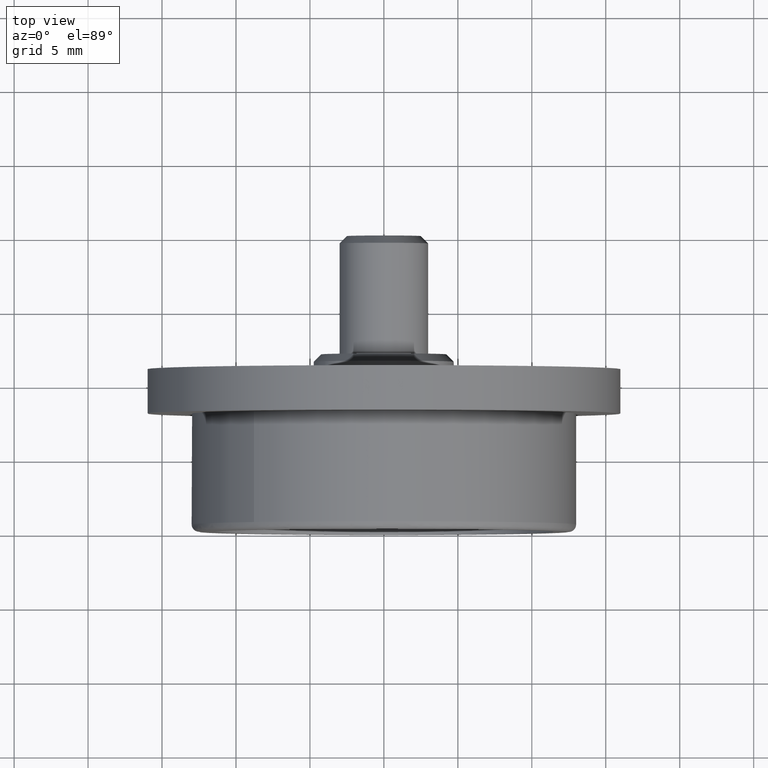
[diagram: clean part render]
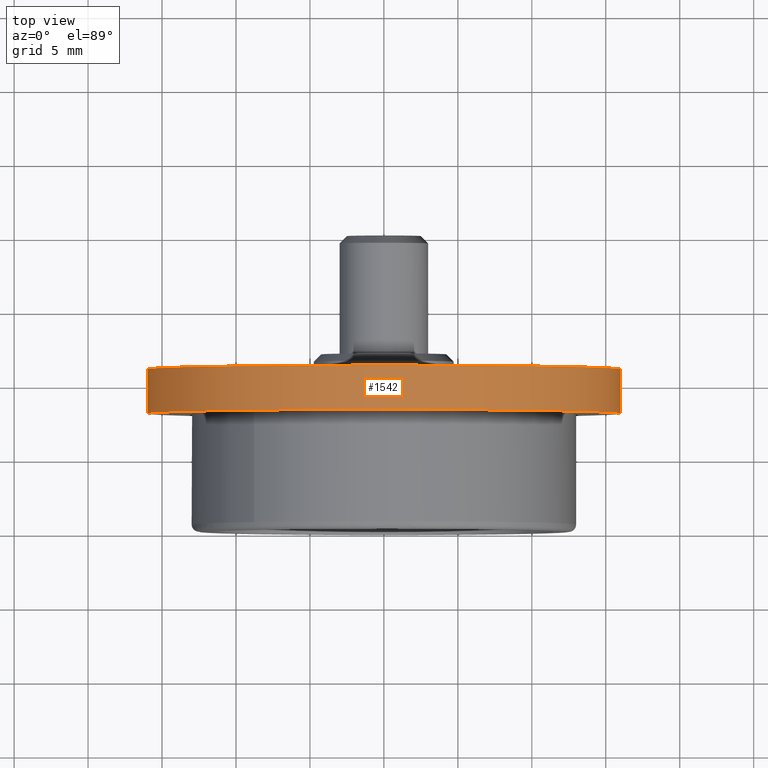
[diagram: same view with one face highlighted and labeled with its STEP entity id]
A machine part, top view. The second image highlights one B-rep face of the part: STEP entity #1542.
In plain terms, the highlighted face is a freeform B-spline surface patch.
Its self-contained STEP definition (entity closure, byte-faithful):
#1440=CARTESIAN_POINT('',(15.888152421818658,11.075000000000001,-1.888547754508135));
#1441=CARTESIAN_POINT('',(15.942201847177685,11.074999999999999,-1.433835658207643));
#1442=CARTESIAN_POINT('',(15.970156774749871,11.074999999999999,-0.976776632557712));
#1443=CARTESIAN_POINT('',(16.946933407307572,11.075000000000001,14.993380142192160));
#1444=CARTESIAN_POINT('',(0.976776632557712,11.074999999999999,15.970156774749871));
#1445=CARTESIAN_POINT('',(-14.993380142192160,11.075000000000001,16.946933407307572));
#1446=CARTESIAN_POINT('',(-15.970156774749871,11.074999999999999,0.976776632557712));
#1447=CARTESIAN_POINT('',(15.888152421818658,7.923125000000001,-1.888547754508135));
#1448=CARTESIAN_POINT('',(15.942201847177685,7.923125000000000,-1.433835658207643));
#1449=CARTESIAN_POINT('',(15.970156774749871,7.923125000000000,-0.976776632557712));
#1450=CARTESIAN_POINT('',(16.946933407307572,7.923124999999999,14.993380142192160));
#1451=CARTESIAN_POINT('',(0.976776632557712,7.923125000000000,15.970156774749871));
#1452=CARTESIAN_POINT('',(-14.993380142192160,7.923124999999999,16.946933407307572));
#1453=CARTESIAN_POINT('',(-15.970156774749871,7.923125000000000,0.976776632557712));
#1461=(BOUNDED_SURFACE()B_SPLINE_SURFACE(2,1,((#1440,#1447),(#1441,#1448),(#1442,#1449),(#1443,#1450),(#1444,#1451),(#1445,#1452),(#1446,#1453)),.UNSPECIFIED.,.F.,.F.,.U.)B_SPLINE_SURFACE_WITH_KNOTS((3,2,2,3),(2,2),(0.0,1.060386719675124,27.570054711553190,54.079722703431273),(0.0,3.151875000000004),.UNSPECIFIED.)GEOMETRIC_REPRESENTATION_ITEM()RATIONAL_B_SPLINE_SURFACE(((0.977505800795127,0.977505800795127),(0.988284271247462,0.988284271247462),(1.0,1.0),(0.707106781186548,0.707106781186548),(1.0,1.0),(0.707106781186548,0.707106781186548),(1.0,1.0)))REPRESENTATION_ITEM('')SURFACE());
#1462=CARTESIAN_POINT('',(15.888153624431769,8.000000000000084,-1.888537636996336));
#1463=VERTEX_POINT('',#1462);
#1464=CARTESIAN_POINT('',(0.0,8.0,16.0));
#1465=VERTEX_POINT('',#1464);
#1466=CARTESIAN_POINT('',(15.888153624431771,8.000000000000084,-1.888537636996335));
#1467=CARTESIAN_POINT('',(15.999999999999998,8.0,-0.947580802194624));
#1468=CARTESIAN_POINT('',(16.0,8.0,-1.598567E-016));
#1469=CARTESIAN_POINT('',(15.999999999999998,8.0,15.999999999999998));
#1470=CARTESIAN_POINT('',(0.0,8.0,16.0));
#1478=(BOUNDED_CURVE()B_SPLINE_CURVE(2,(#1466,#1467,#1468,#1469,#1470),.UNSPECIFIED.,.F.,.U.)B_SPLINE_CURVE_WITH_KNOTS((3,2,3),(0.229562581136241,0.250000000000000,0.500000000000000),.UNSPECIFIED.)CURVE()GEOMETRIC_REPRESENTATION_ITEM()RATIONAL_B_SPLINE_CURVE((0.956026965128767,0.976056074419019,1.0,0.707106781186548,1.0))REPRESENTATION_ITEM(''));
#1479=EDGE_CURVE('',#1463,#1465,#1478,.T.);
#1480=ORIENTED_EDGE('',*,*,#1479,.F.);
#1481=CARTESIAN_POINT('',(15.888153609598129,11.0,-1.888537761791544));
#1482=VERTEX_POINT('',#1481);
#1483=CARTESIAN_POINT('',(15.888153609598129,11.0,-1.888537761791544));
#1484=CARTESIAN_POINT('',(15.888153624431769,8.000000000000084,-1.888537636996336));
#1485=QUASI_UNIFORM_CURVE('',1,(#1483,#1484),.UNSPECIFIED.,.F.,.U.);
#1486=EDGE_CURVE('',#1482,#1463,#1485,.T.);
#1487=ORIENTED_EDGE('',*,*,#1486,.F.);
#1488=CARTESIAN_POINT('',(0.0,11.0,16.0));
#1489=VERTEX_POINT('',#1488);
#1490=CARTESIAN_POINT('',(15.888153609598131,11.000000000000002,-1.888537761791543));
#1491=CARTESIAN_POINT('',(16.0,10.999999999999996,-0.947580865251876));
#1492=CARTESIAN_POINT('',(16.0,11.0,-1.598567E-016));
#1493=CARTESIAN_POINT('',(15.999999999999998,11.0,15.999999999999998));
#1494=CARTESIAN_POINT('',(0.0,11.0,16.0));
#1502=(BOUNDED_CURVE()B_SPLINE_CURVE(2,(#1490,#1491,#1492,#1493,#1494),.UNSPECIFIED.,.F.,.U.)B_SPLINE_CURVE_WITH_KNOTS((3,2,3),(0.229562579808786,0.250000000000000,0.500000000000000),.UNSPECIFIED.)CURVE()GEOMETRIC_REPRESENTATION_ITEM()RATIONAL_B_SPLINE_CURVE((0.956026962526900,0.976056072863809,1.0,0.707106781186548,1.0))REPRESENTATION_ITEM(''));
#1503=EDGE_CURVE('',#1482,#1489,#1502,.T.);
#1504=ORIENTED_EDGE('',*,*,#1503,.T.);
#1505=CARTESIAN_POINT('',(-15.970157119976150,11.0,0.976770988125244));
#1506=VERTEX_POINT('',#1505);
#1507=CARTESIAN_POINT('',(0.0,11.0,16.0));
#1508=CARTESIAN_POINT('',(-15.051302400106817,11.000000000000002,15.999999999999995));
#1509=CARTESIAN_POINT('',(-15.970157119976150,11.000000000000002,0.976770988125244));
#1517=(BOUNDED_CURVE()B_SPLINE_CURVE(2,(#1507,#1508,#1509),.UNSPECIFIED.,.F.,.U.)B_SPLINE_CURVE_WITH_KNOTS((3,3),(0.500000000000000,0.739333023226263),.UNSPECIFIED.)CURVE()GEOMETRIC_REPRESENTATION_ITEM()RATIONAL_B_SPLINE_CURVE((1.0,0.719603921835620,0.976072172374189))REPRESENTATION_ITEM(''));
#1518=EDGE_CURVE('',#1489,#1506,#1517,.T.);
#1519=ORIENTED_EDGE('',*,*,#1518,.T.);
#1520=CARTESIAN_POINT('',(-15.970157124285571,8.000000000000055,0.976770917665998));
#1521=VERTEX_POINT('',#1520);
#1522=CARTESIAN_POINT('',(-15.970157119976150,11.0,0.976770988125244));
#1523=CARTESIAN_POINT('',(-15.970157124285571,8.000000000000055,0.976770917665998));
#1524=QUASI_UNIFORM_CURVE('',1,(#1522,#1523),.UNSPECIFIED.,.F.,.U.);
#1525=EDGE_CURVE('',#1506,#1521,#1524,.T.);
#1526=ORIENTED_EDGE('',*,*,#1525,.T.);
#1527=CARTESIAN_POINT('',(0.0,8.0,16.0));
#1528=CARTESIAN_POINT('',(-15.051302466636239,8.0,16.0));
#1529=CARTESIAN_POINT('',(-15.970157124285565,8.000000000000055,0.976770917665998));
#1537=(BOUNDED_CURVE()B_SPLINE_CURVE(2,(#1527,#1528,#1529),.UNSPECIFIED.,.F.,.U.)B_SPLINE_CURVE_WITH_KNOTS((3,3),(0.500000000000000,0.739333023987528),.UNSPECIFIED.)CURVE()GEOMETRIC_REPRESENTATION_ITEM()RATIONAL_B_SPLINE_CURVE((1.0,0.719603920943743,0.976072174005725))REPRESENTATION_ITEM(''));
#1538=EDGE_CURVE('',#1465,#1521,#1537,.T.);
#1539=ORIENTED_EDGE('',*,*,#1538,.F.);
#1540=EDGE_LOOP('',(#1480,#1487,#1504,#1519,#1526,#1539));
#1541=FACE_OUTER_BOUND('',#1540,.T.);
#1542=ADVANCED_FACE('',(#1541),#1461,.T.);